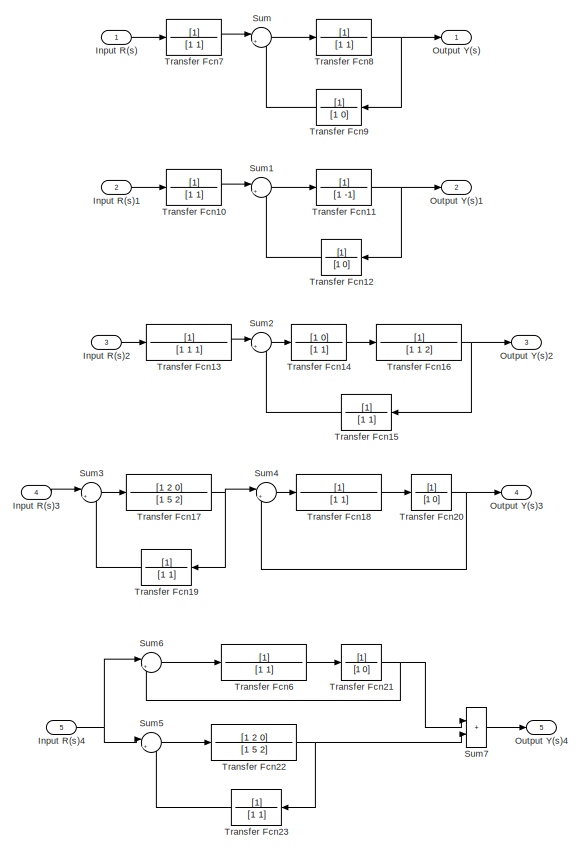
[diagram: root canvas - part 1/2, right side, full height]
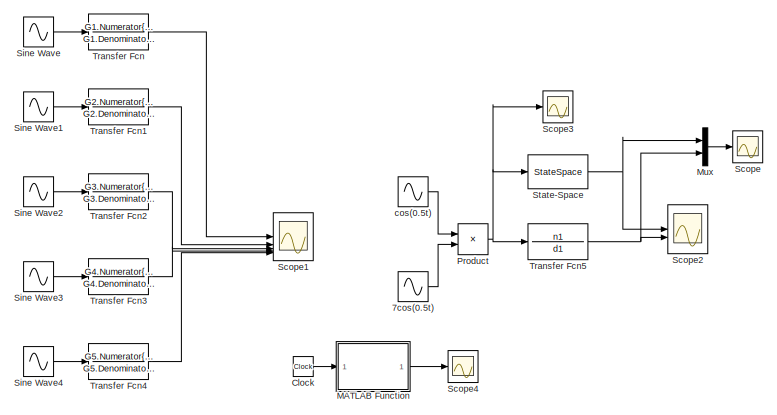
[diagram: root canvas - part 2/2, top left region]
MODEL slx_283b0988295a
KIND model
CONFIG AbsTol = auto
CONFIG EnableMultiTasking = off
CONFIG FixedStep = 0.01
CONFIG MaxStep = auto
CONFIG MinStep = auto
CONFIG RelTol = 1e-3
CONFIG SampleTimeConstraint = Unconstrained
CONFIG SolverName = ode4
CONFIG StartTime = 0.0
CONFIG StopTime = 10.0
BLOCK [Sin] 7cos(0.5t)
  Amplitude = 7
  Frequency = 0.5
  Phase = pi/2
  SampleTime = 0
BLOCK [Clock] Clock
BLOCK [Inport] Input R(s)
BLOCK [Inport] Input R(s)1
  Port = 2
BLOCK [Inport] Input R(s)2
  Port = 3
BLOCK [Inport] Input R(s)3
  Port = 4
BLOCK [Inport] Input R(s)4
  Port = 5
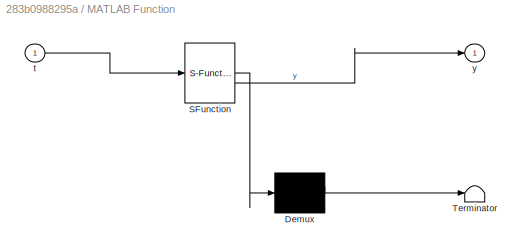
BLOCK [SubSystem] MATLAB Function
  ErrorFcn = Stateflow.Translate.translate
  LibrarySourceBlock = simulink/User-Defined\nFunctions/MATLAB Function
  PermitHierarchicalResolution = ExplicitOnly
  SFBlockType = MATLAB Function
  TreatAsAtomicUnit = on
BLOCK [Demux] MATLAB Function/ Demux 
  Outputs = 1
BLOCK [S-Function] MATLAB Function/ SFunction 
  EnableBusSupport = on
  FunctionName = sf_sfun
  PortCounts = [1 2]
  SFcnIsStateOwnerBlock = off
  SFunctionDeploymentMode = off
  Tag = Stateflow S-Function 2
BLOCK [Terminator] MATLAB Function/ Terminator 
BLOCK [Inport] MATLAB Function/t
BLOCK [Outport] MATLAB Function/y
BLOCK [Mux] Mux
  DisplayOption = bar
  Inputs = 2
BLOCK [Outport] Output Y(s)
BLOCK [Outport] Output Y(s)1
  Port = 2
BLOCK [Outport] Output Y(s)2
  Port = 3
BLOCK [Outport] Output Y(s)3
  Port = 4
BLOCK [Outport] Output Y(s)4
  Port = 5
BLOCK [Product] Product
BLOCK [Scope] Scope
  Floating = off
  NumInputPorts = 1
  ScopeSpecificationString = Simulink.scopes.TimeScopeBlockCfg('CurrentConfiguration', extmgr.ConfigurationSet(extmgr.Configuration('Core','General UI',true),extmgr.Configuration('Core','Source UI',true),extmgr.Configuration('Sources','WiredSimulink',true,'DataLoggingVariableName','ScopeData1'),extmgr.Configuration('Visuals','Time Domain',true,'SerializedDisplays',{struct('MinYLimReal','-1524245.47635','MaxYLimReal','305723.7...<+1428ch>
BLOCK [Scope] Scope1
  Floating = off
  NumInputPorts = 5
  ScopeSpecificationString = Simulink.scopes.TimeScopeBlockCfg('CurrentConfiguration', extmgr.ConfigurationSet(extmgr.Configuration('Core','General UI',true,'FigureColor',[1 1 1]),extmgr.Configuration('Core','Source UI',true),extmgr.Configuration('Sources','WiredSimulink',true,'DataLoggingVariableName','ScopeData1'),extmgr.Configuration('Visuals','Time Domain',true,'SerializedDisplays',{struct('MinYLimReal','-0.44499','MaxYLi...<+5622ch>
BLOCK [Scope] Scope2
  Floating = off
  NumInputPorts = 2
  ScopeSpecificationString = Simulink.scopes.TimeScopeBlockCfg('CurrentConfiguration', extmgr.ConfigurationSet(extmgr.Configuration('Core','General UI',true,'FigureColor',[1 1 1]),extmgr.Configuration('Core','Source UI',true),extmgr.Configuration('Sources','WiredSimulink',true),extmgr.Configuration('Visuals','Time Domain',true,'SerializedDisplays',{struct('MinYLimReal','-1524245.47635','MaxYLimReal','305723.775','YLabelReal',...<+2489ch>
BLOCK [Scope] Scope3
  Floating = off
  NumInputPorts = 1
  ScopeSpecificationString = Simulink.scopes.TimeScopeBlockCfg('CurrentConfiguration', extmgr.ConfigurationSet(extmgr.Configuration('Core','General UI',true),extmgr.Configuration('Core','Source UI',true),extmgr.Configuration('Sources','WiredSimulink',true,'DataLoggingVariableName','ScopeData2'),extmgr.Configuration('Visuals','Time Domain',true,'SerializedDisplays',{struct('MinYLimReal','-0.875','MaxYLimReal','7.875','YLabelRe...<+1383ch>
BLOCK [Scope] Scope4
  Floating = off
  NumInputPorts = 1
  ScopeSpecificationString = Simulink.scopes.TimeScopeBlockCfg('CurrentConfiguration', extmgr.ConfigurationSet(extmgr.Configuration('Core','General UI',true),extmgr.Configuration('Core','Source UI',true),extmgr.Configuration('Sources','WiredSimulink',true,'DataLoggingVariableName','ScopeData3'),extmgr.Configuration('Visuals','Time Domain',true,'SerializedDisplays',{struct('MinYLimReal','-0.875','MaxYLimReal','7.875','YLabelRe...<+1391ch>
BLOCK [Sin] Sine Wave
  Frequency = 2
  SampleTime = 0
BLOCK [Sin] Sine Wave1
  Frequency = 2
  SampleTime = 0
BLOCK [Sin] Sine Wave2
  Frequency = 2
  SampleTime = 0
BLOCK [Sin] Sine Wave3
  Frequency = 2
  SampleTime = 0
BLOCK [Sin] Sine Wave4
  Frequency = 2
  SampleTime = 0
BLOCK [StateSpace] State-Space
  A = A
  B = B
  C = C
  D = D
  InitialCondition = [0;0;0]
BLOCK [Sum] Sum
  Inputs = |+-
BLOCK [Sum] Sum1
  Inputs = |++
BLOCK [Sum] Sum2
  Inputs = |+-
BLOCK [Sum] Sum3
  Inputs = |+-
BLOCK [Sum] Sum4
  Inputs = |+-
BLOCK [Sum] Sum5
  Inputs = |+-
BLOCK [Sum] Sum6
  Inputs = |+-
BLOCK [Sum] Sum7
  IconShape = rectangular
  Inputs = |++
BLOCK [TransferFcn] Transfer Fcn
  Denominator = G1.Denominator{:}
  Numerator = G1.Numerator{:}
BLOCK [TransferFcn] Transfer Fcn1
  Denominator = G2.Denominator{:}
  Numerator = G2.Numerator{:}
BLOCK [TransferFcn] Transfer Fcn10
  Denominator = [1 1]
BLOCK [TransferFcn] Transfer Fcn11
  Denominator = [1 -1]
BLOCK [TransferFcn] Transfer Fcn12
  Denominator = [1 0]
  NameLocation = top
BLOCK [TransferFcn] Transfer Fcn13
  Denominator = [1 1 1]
BLOCK [TransferFcn] Transfer Fcn14
  Denominator = [1 1]
  Numerator = [1 0]
BLOCK [TransferFcn] Transfer Fcn15
  Denominator = [1 1]
  NameLocation = top
BLOCK [TransferFcn] Transfer Fcn16
  Denominator = [1 1 2]
BLOCK [TransferFcn] Transfer Fcn17
  Denominator = [1 5 2]
  Numerator = [1 2 0]
BLOCK [TransferFcn] Transfer Fcn18
BLOCK [TransferFcn] Transfer Fcn19
  Denominator = [1 1]
  NameLocation = top
BLOCK [TransferFcn] Transfer Fcn2
  Denominator = G3.Denominator{:}
  Numerator = G3.Numerator{:}
BLOCK [TransferFcn] Transfer Fcn20
  Denominator = [1 0]
BLOCK [TransferFcn] Transfer Fcn21
  Denominator = [1 0]
BLOCK [TransferFcn] Transfer Fcn22
  Denominator = [1 5 2]
  Numerator = [1 2 0]
BLOCK [TransferFcn] Transfer Fcn23
  Denominator = [1 1]
  NameLocation = top
BLOCK [TransferFcn] Transfer Fcn3
  Denominator = G4.Denominator{:}
  Numerator = G4.Numerator{:}
BLOCK [TransferFcn] Transfer Fcn4
  Denominator = G5.Denominator{:}
  Numerator = G5.Numerator{:}
BLOCK [TransferFcn] Transfer Fcn5
  Denominator = d1
  Numerator = n1
BLOCK [TransferFcn] Transfer Fcn6
BLOCK [TransferFcn] Transfer Fcn7
  Denominator = [1 1]
BLOCK [TransferFcn] Transfer Fcn8
  Denominator = [1 1]
BLOCK [TransferFcn] Transfer Fcn9
  Denominator = [1 0]
  NameLocation = top
BLOCK [Sin] cos(0.5t)
  Frequency = 0.5
  Phase = pi/2
  SampleTime = 0
LINE 7cos(0.5t):1 -> Product:2
LINE Clock:1 -> MATLAB Function:1
LINE Input R(s)1:1 -> Transfer Fcn10:1
LINE Input R(s)2:1 -> Transfer Fcn13:1
LINE Input R(s)3:1 -> Sum3:1
NET Input R(s)4:1 -> Sum5:1, Sum6:1
LINE Input R(s):1 -> Transfer Fcn7:1
LINE MATLAB Function:1 -> Scope4:1
LINE Mux:1 -> Scope:1
NET Product:1 -> Scope3:1, State-Space:1, Transfer Fcn5:1
LINE Sine Wave1:1 -> Transfer Fcn1:1
LINE Sine Wave2:1 -> Transfer Fcn2:1
LINE Sine Wave3:1 -> Transfer Fcn3:1
LINE Sine Wave4:1 -> Transfer Fcn4:1
LINE Sine Wave:1 -> Transfer Fcn:1
NET State-Space:1 -> Mux:1, Scope2:1
LINE Sum1:1 -> Transfer Fcn11:1
LINE Sum2:1 -> Transfer Fcn14:1
LINE Sum3:1 -> Transfer Fcn17:1
LINE Sum4:1 -> Transfer Fcn18:1
LINE Sum5:1 -> Transfer Fcn22:1
LINE Sum6:1 -> Transfer Fcn6:1
LINE Sum7:1 -> Output Y(s)4:1
LINE Sum:1 -> Transfer Fcn8:1
LINE Transfer Fcn10:1 -> Sum1:1
NET Transfer Fcn11:1 -> Output Y(s)1:1, Transfer Fcn12:1
LINE Transfer Fcn12:1 -> Sum1:2
LINE Transfer Fcn13:1 -> Sum2:1
LINE Transfer Fcn14:1 -> Transfer Fcn16:1
LINE Transfer Fcn15:1 -> Sum2:2
NET Transfer Fcn16:1 -> Output Y(s)2:1, Transfer Fcn15:1
NET Transfer Fcn17:1 -> Sum4:1, Transfer Fcn19:1
LINE Transfer Fcn18:1 -> Transfer Fcn20:1
LINE Transfer Fcn19:1 -> Sum3:2
LINE Transfer Fcn1:1 -> Scope1:2
NET Transfer Fcn20:1 -> Output Y(s)3:1, Sum4:2
NET Transfer Fcn21:1 -> Sum6:2, Sum7:1
NET Transfer Fcn22:1 -> Sum7:2, Transfer Fcn23:1
LINE Transfer Fcn23:1 -> Sum5:2
LINE Transfer Fcn2:1 -> Scope1:3
LINE Transfer Fcn3:1 -> Scope1:4
LINE Transfer Fcn4:1 -> Scope1:5
NET Transfer Fcn5:1 -> Mux:2, Scope2:2
LINE Transfer Fcn6:1 -> Transfer Fcn21:1
LINE Transfer Fcn7:1 -> Sum:1
NET Transfer Fcn8:1 -> Output Y(s):1, Transfer Fcn9:1
LINE Transfer Fcn9:1 -> Sum:2
LINE Transfer Fcn:1 -> Scope1:1
LINE cos(0.5t):1 -> Product:1
note: NET lines group one-source signal fan-out (src -> all destinations, sorted); 1:1 wires keep LINE
CHART MATLAB Function states=1 transitions=1
  STATE_LABEL 'eML_blk_kernel()'
  STATE_LABEL 'SCRIPT:\nfunction y = fcn(t)\n\ny = 7*(cos(0.5*t))^2;\n'
CHART  states=0 transitions=0
